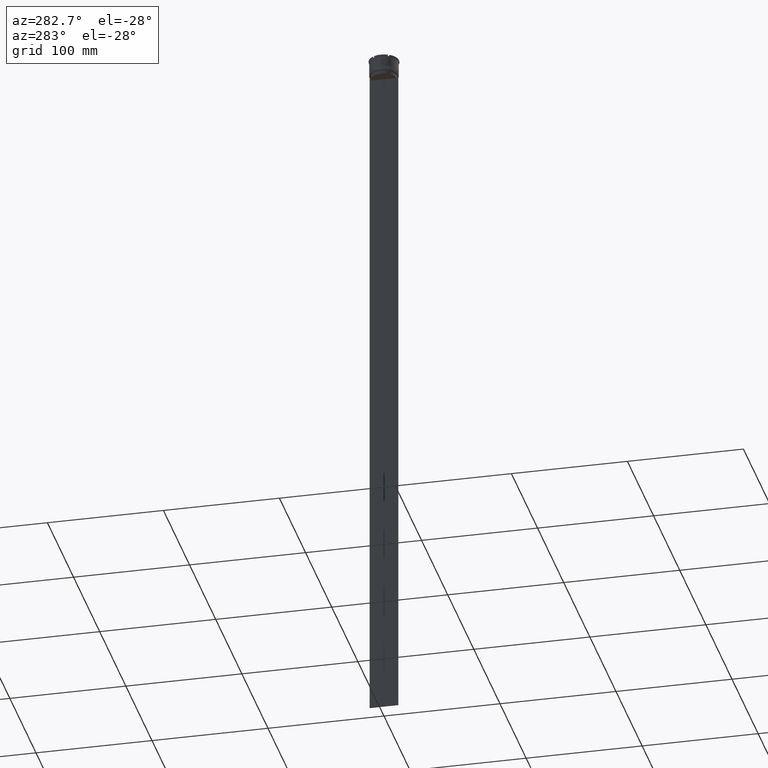
[diagram: clean part render]
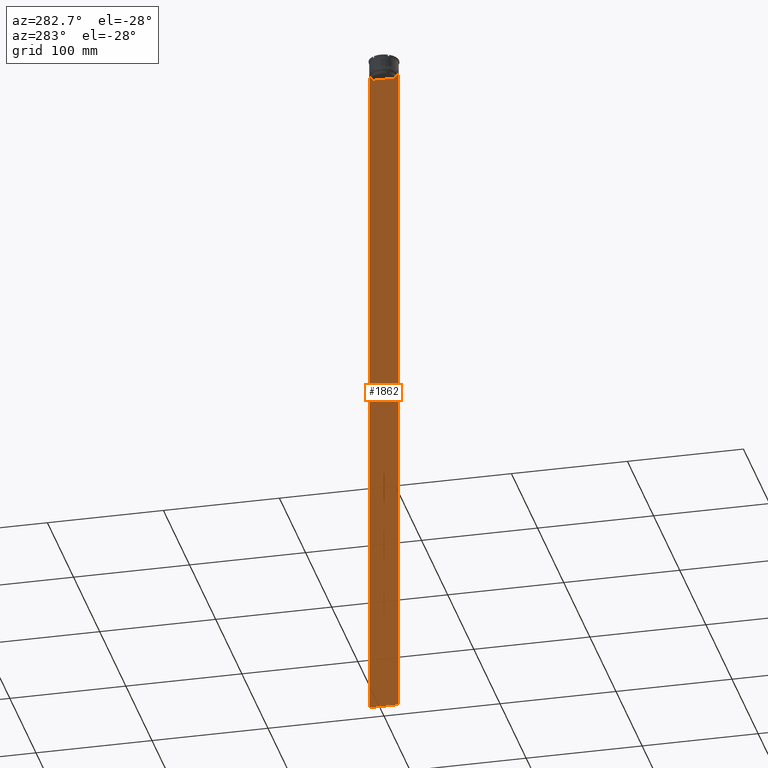
[diagram: same view with one face highlighted and labeled with its STEP entity id]
A machine part, auxiliary view. The second image highlights one B-rep face of the part: STEP entity #1862.
In plain terms, the highlighted planar face has unit normal (-1, 0, 0).
Its self-contained STEP definition (entity closure, byte-faithful):
#17 = CARTESIAN_POINT ( 'NONE',  ( -0.4999999999999997780, -12.25000000000000711, -614.0000000000000000 ) ) ;
#20 = VECTOR ( 'NONE', #126, 1000.000000000000000 ) ;
#40 = VERTEX_POINT ( 'NONE', #2673 ) ;
#106 = CARTESIAN_POINT ( 'NONE',  ( -0.4999999999999997780, -12.25000000000000711, -614.0000000000000000 ) ) ;
#126 = DIRECTION ( 'NONE',  ( 0.000000000000000000, -1.000000000000000000, 0.000000000000000000 ) ) ;
#128 = CARTESIAN_POINT ( 'NONE',  ( -0.4999999999999997780, 11.38902980942626719, -14.00000000000000178 ) ) ;
#136 = EDGE_CURVE ( 'NONE', #999, #279, #2760, .T. ) ;
#168 = DIRECTION ( 'NONE',  ( 0.000000000000000000, -1.000000000000000000, 0.000000000000000000 ) ) ;
#192 = EDGE_CURVE ( 'NONE', #821, #999, #764, .T. ) ;
#205 = LINE ( 'NONE', #638, #2577 ) ;
#251 = VERTEX_POINT ( 'NONE', #1262 ) ;
#279 = VERTEX_POINT ( 'NONE', #1971 ) ;
#301 = VECTOR ( 'NONE', #2352, 1000.000000000000000 ) ;
#339 = LINE ( 'NONE', #2750, #20 ) ;
#498 = ORIENTED_EDGE ( 'NONE', *, *, #2666, .F. ) ;
#504 = DIRECTION ( 'NONE',  ( 0.000000000000000000, -1.000000000000000000, 0.000000000000000000 ) ) ;
#529 = CARTESIAN_POINT ( 'NONE',  ( -0.4999999999999997780, 12.24999999999999289, 10.52039967047845792 ) ) ;
#585 = VECTOR ( 'NONE', #884, 1000.000000000000000 ) ;
#621 = ORIENTED_EDGE ( 'NONE', *, *, #136, .F. ) ;
#638 = CARTESIAN_POINT ( 'NONE',  ( -0.4999999999999997780, -10.88852607105296322, 0.000000000000000000 ) ) ;
#668 = VERTEX_POINT ( 'NONE', #2289 ) ;
#744 = LINE ( 'NONE', #1573, #2681 ) ;
#764 = LINE ( 'NONE', #1660, #1713 ) ;
#776 = ORIENTED_EDGE ( 'NONE', *, *, #192, .F. ) ;
#816 = CARTESIAN_POINT ( 'NONE',  ( -0.4999999999999997780, 11.22219891375843304, -14.16667035472756808 ) ) ;
#817 = EDGE_CURVE ( 'NONE', #251, #1282, #1909, .T. ) ;
#821 = VERTEX_POINT ( 'NONE', #1710 ) ;
#823 = CARTESIAN_POINT ( 'NONE',  ( -0.4999999999999997780, -11.38902980942626719, -14.00000000000000178 ) ) ;
#836 = EDGE_LOOP ( 'NONE', ( #1123, #1235, #1551, #1569, #1251, #2611, #498, #2295, #621, #776 ) ) ;
#837 = EDGE_CURVE ( 'NONE', #279, #2481, #205, .T. ) ;
#884 = DIRECTION ( 'NONE',  ( 0.000000000000000000, 0.000000000000000000, -1.000000000000000000 ) ) ;
#952 = B_SPLINE_CURVE_WITH_KNOTS ( 'NONE', 3,
 ( #2390, #1037, #1724, #2570 ),
 .UNSPECIFIED., .F., .F.,
 ( 4, 4 ),
 ( 0.05041323384703224469, 0.05112713601261603680 ),
 .UNSPECIFIED. ) ;
#999 = VERTEX_POINT ( 'NONE', #1795 ) ;
#1016 = PLANE ( 'NONE',  #2142 ) ;
#1030 = VECTOR ( 'NONE', #2038, 1000.000000000000000 ) ;
#1037 = CARTESIAN_POINT ( 'NONE',  ( -0.4999999999999997780, -11.05536450423839057, -14.33333718996393280 ) ) ;
#1043 = DIRECTION ( 'NONE',  ( 0.000000000000000000, 0.000000000000000000, 1.000000000000000000 ) ) ;
#1069 = LINE ( 'NONE', #17, #301 ) ;
#1123 = ORIENTED_EDGE ( 'NONE', *, *, #2273, .F. ) ;
#1195 = CARTESIAN_POINT ( 'NONE',  ( -0.4999999999999997780, -12.25000000000000711, 10.52039967047845792 ) ) ;
#1225 = CARTESIAN_POINT ( 'NONE',  ( -0.4999999999999997780, 10.88852607105296322, -14.50000000000000000 ) ) ;
#1235 = ORIENTED_EDGE ( 'NONE', *, *, #2166, .F. ) ;
#1251 = ORIENTED_EDGE ( 'NONE', *, *, #817, .F. ) ;
#1262 = CARTESIAN_POINT ( 'NONE',  ( -0.4999999999999997780, -12.25000000000000711, -14.00000000000000178 ) ) ;
#1282 = VERTEX_POINT ( 'NONE', #106 ) ;
#1326 = EDGE_CURVE ( 'NONE', #2039, #40, #2493, .T. ) ;
#1400 = B_SPLINE_CURVE_WITH_KNOTS ( 'NONE', 3,
 ( #128, #816, #2542, #1225 ),
 .UNSPECIFIED., .F., .F.,
 ( 4, 4 ),
 ( 0.01935560801904634073, 0.02006307108468586772 ),
 .UNSPECIFIED. ) ;
#1475 = FACE_OUTER_BOUND ( 'NONE', #836, .T. ) ;
#1477 = CARTESIAN_POINT ( 'NONE',  ( -0.4999999999999997780, 10.90000000000000213, -17.00000000000000000 ) ) ;
#1500 = VERTEX_POINT ( 'NONE', #823 ) ;
#1504 = DIRECTION ( 'NONE',  ( -0.000000000000000000, -0.000000000000000000, 1.000000000000000000 ) ) ;
#1540 = VECTOR ( 'NONE', #168, 1000.000000000000000 ) ;
#1546 = CARTESIAN_POINT ( 'NONE',  ( -0.4999999999999997780, 12.24999999999999289, -14.00000000000000178 ) ) ;
#1551 = ORIENTED_EDGE ( 'NONE', *, *, #1326, .T. ) ;
#1569 = ORIENTED_EDGE ( 'NONE', *, *, #1979, .F. ) ;
#1573 = CARTESIAN_POINT ( 'NONE',  ( -0.4999999999999997780, -12.25000000000000711, -14.00000000000000178 ) ) ;
#1660 = CARTESIAN_POINT ( 'NONE',  ( -0.4999999999999997780, 10.88852607105296322, 0.000000000000000000 ) ) ;
#1710 = CARTESIAN_POINT ( 'NONE',  ( -0.4999999999999997780, 10.88852607105296322, -14.50000000000000000 ) ) ;
#1713 = VECTOR ( 'NONE', #2506, 1000.000000000000000 ) ;
#1724 = CARTESIAN_POINT ( 'NONE',  ( -0.4999999999999997780, -11.22219891450652973, -14.16667035398018903 ) ) ;
#1795 = CARTESIAN_POINT ( 'NONE',  ( -0.4999999999999997780, 10.88852607105296144, -17.00000000000000000 ) ) ;
#1862 = ADVANCED_FACE ( 'NONE', ( #1475 ), #1016, .T. ) ;
#1909 = LINE ( 'NONE', #2768, #585 ) ;
#1971 = CARTESIAN_POINT ( 'NONE',  ( -0.4999999999999997780, -10.88852607105296144, -17.00000000000000000 ) ) ;
#1979 = EDGE_CURVE ( 'NONE', #1282, #40, #1069, .T. ) ;
#2038 = DIRECTION ( 'NONE',  ( 0.000000000000000000, 0.000000000000000000, -1.000000000000000000 ) ) ;
#2039 = VERTEX_POINT ( 'NONE', #1546 ) ;
#2122 = DIRECTION ( 'NONE',  ( -1.000000000000000000, 0.000000000000000000, 0.000000000000000000 ) ) ;
#2142 = AXIS2_PLACEMENT_3D ( 'NONE', #1195, #2122, #1043 ) ;
#2166 = EDGE_CURVE ( 'NONE', #2039, #668, #744, .T. ) ;
#2273 = EDGE_CURVE ( 'NONE', #668, #821, #1400, .T. ) ;
#2289 = CARTESIAN_POINT ( 'NONE',  ( -0.4999999999999997780, 11.38902980942626719, -14.00000000000000178 ) ) ;
#2295 = ORIENTED_EDGE ( 'NONE', *, *, #837, .F. ) ;
#2352 = DIRECTION ( 'NONE',  ( 0.000000000000000000, 1.000000000000000000, 0.000000000000000000 ) ) ;
#2390 = CARTESIAN_POINT ( 'NONE',  ( -0.4999999999999997780, -10.88852607105296322, -14.50000000000000000 ) ) ;
#2481 = VERTEX_POINT ( 'NONE', #2512 ) ;
#2493 = LINE ( 'NONE', #529, #1030 ) ;
#2506 = DIRECTION ( 'NONE',  ( 0.000000000000000000, 0.000000000000000000, -1.000000000000000000 ) ) ;
#2512 = CARTESIAN_POINT ( 'NONE',  ( -0.4999999999999997780, -10.88852607105296322, -14.50000000000000000 ) ) ;
#2529 = EDGE_CURVE ( 'NONE', #1500, #251, #339, .T. ) ;
#2542 = CARTESIAN_POINT ( 'NONE',  ( -0.4999999999999997780, 11.05536450345590538, -14.33333719074559376 ) ) ;
#2570 = CARTESIAN_POINT ( 'NONE',  ( -0.4999999999999997780, -11.38902980942626719, -14.00000000000000178 ) ) ;
#2577 = VECTOR ( 'NONE', #1504, 1000.000000000000000 ) ;
#2611 = ORIENTED_EDGE ( 'NONE', *, *, #2529, .F. ) ;
#2666 = EDGE_CURVE ( 'NONE', #2481, #1500, #952, .T. ) ;
#2673 = CARTESIAN_POINT ( 'NONE',  ( -0.4999999999999997780, 12.24999999999999289, -614.0000000000000000 ) ) ;
#2681 = VECTOR ( 'NONE', #504, 1000.000000000000000 ) ;
#2750 = CARTESIAN_POINT ( 'NONE',  ( -0.4999999999999997780, -12.25000000000000711, -14.00000000000000178 ) ) ;
#2760 = LINE ( 'NONE', #1477, #1540 ) ;
#2768 = CARTESIAN_POINT ( 'NONE',  ( -0.4999999999999997780, -12.25000000000000711, 10.52039967047845792 ) ) ;